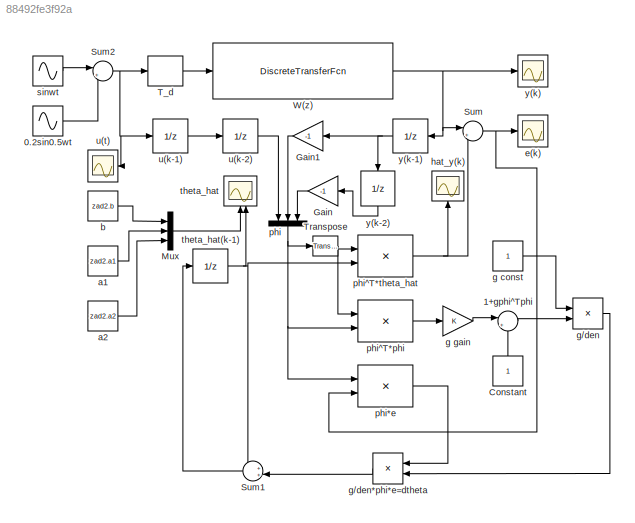
MODEL slx_88492fe3f92a
KIND model
CONFIG AbsTol = auto
CONFIG EnableMultiTasking = off
CONFIG FixedStep = 1e-3
CONFIG MaxStep = auto
CONFIG MinStep = auto
CONFIG RelTol = 1e-3
CONFIG SampleTimeConstraint = Unconstrained
CONFIG SolverName = FixedStepAuto
CONFIG StartTime = 0.0
CONFIG StopTime = 60.0
BLOCK [Sin] 0.2sin0.5wt
  Amplitude = 0.2
  Frequency = 0.5*zad2.w
BLOCK [Sum] 1+gphi^Tphi
  Inputs = |++
  NameLocation = top
BLOCK [Constant] Constant
  NameLocation = right
BLOCK [Gain] Gain
  Gain = -1
  NameLocation = top
BLOCK [Gain] Gain1
  Gain = -1
  NameLocation = top
BLOCK [Mux] Mux
  DisplayOption = bar
  Inputs = 3
BLOCK [Sum] Sum
  Inputs = |+-
BLOCK [Sum] Sum1
  Inputs = ++|
  NameLocation = top
BLOCK [Sum] Sum2
  Inputs = |++
BLOCK [ZeroOrderHold] T_d
  SampleTime = 0.1
BLOCK [Reference] Transpose  REF=matrix_library/Transpose
  LibrarySourceBlock = simulink/Matrix\nOperations/Transpose
  SourceBlock = matrix_library/Transpose
  SourceType = Transpose
BLOCK [DiscreteTransferFcn] W(z)
  Denominator = [1 zad2.a1 zad2.a2]
  InputPortMap = u0
  Numerator = [0 0 zad2.b]
BLOCK [Constant] a1
  Value = zad2.a1
BLOCK [Constant] a2
  Value = zad2.a2
BLOCK [Constant] b
  Value = zad2.b
BLOCK [Scope] e(k)
  Floating = off
  NumInputPorts = 1
  ScopeSpecificationString = Simulink.scopes.TimeScopeBlockCfg('CurrentConfiguration', extmgr.ConfigurationSet(extmgr.Configuration('Core','General UI',true,'FigureColor',[1 1 1]),extmgr.Configuration('Core','Source UI',true),extmgr.Configuration('Sources','WiredSimulink',true,'DataLoggingVariableName','ScopeData2'),extmgr.Configuration('Visuals','Time Domain',true,'SerializedDisplays',{struct('MinYLimReal','-4.4749','MaxYLim...<+2385ch>
BLOCK [Constant] g const
BLOCK [Gain] g gain
BLOCK [Product] g//den
  Inputs = */
BLOCK [Product] g//den*phi*e=dtheta
  NameLocation = top
BLOCK [Scope] hat_y(k)
  Floating = off
  NameLocation = top
  NumInputPorts = 1
  ScopeSpecificationString = Simulink.scopes.TimeScopeBlockCfg('CurrentConfiguration', extmgr.ConfigurationSet(extmgr.Configuration('Core','General UI',true,'FigureColor',[1 1 1]),extmgr.Configuration('Core','Source UI',true),extmgr.Configuration('Sources','WiredSimulink',true,'DataLoggingVariableName','ScopeData1'),extmgr.Configuration('Visuals','Time Domain',true,'SerializedDisplays',{struct('MinYLimReal','-1.90405','MaxYLi...<+2411ch>
BLOCK [Mux] phi
  DisplayOption = bar
  Inputs = 3
  NameLocation = left
BLOCK [Product] phi*e
  Multiplication = Matrix(*)
BLOCK [Product] phi^T*phi
  Multiplication = Matrix(*)
BLOCK [Product] phi^T*theta_hat
  Multiplication = Matrix(*)
BLOCK [Sin] sinwt
  Frequency = zad2.w
BLOCK [Scope] theta_hat
  Floating = off
  NameLocation = left
  NumInputPorts = 2
  ScopeSpecificationString = Simulink.scopes.TimeScopeBlockCfg('CurrentConfiguration', extmgr.ConfigurationSet(extmgr.Configuration('Core','General UI',true,'FigureColor',[1 1 1]),extmgr.Configuration('Core','Source UI',true),extmgr.Configuration('Sources','WiredSimulink',true,'DataLoggingVariableName','ScopeData3'),extmgr.Configuration('Visuals','Time Domain',true,'SerializedDisplays',{struct('MinYLimReal','-2.51125','MaxYLi...<+2394ch>
BLOCK [UnitDelay] theta_hat(k-1)
  HasFrameUpgradeWarning = on
  InitialCondition = [0;0;0];
  SampleTime = 0.1
BLOCK [UnitDelay] u(k-1)
  HasFrameUpgradeWarning = on
  SampleTime = 0.1
BLOCK [UnitDelay] u(k-2)
  HasFrameUpgradeWarning = on
  SampleTime = 0.1
BLOCK [Scope] u(t)
  Floating = off
  NameLocation = top
  NumInputPorts = 1
  ScopeSpecificationString = Simulink.scopes.TimeScopeBlockCfg('CurrentConfiguration', extmgr.ConfigurationSet(extmgr.Configuration('Core','General UI',true,'FigureColor',[1 1 1]),extmgr.Configuration('Core','Source UI',true),extmgr.Configuration('Sources','WiredSimulink',true,'DataLoggingVariableName','ScopeData1'),extmgr.Configuration('Visuals','Time Domain',true,'SerializedDisplays',{struct('MinYLimReal','-1.39383','MaxYLi...<+2352ch>
BLOCK [Scope] y(k)
  Floating = off
  NumInputPorts = 1
  ScopeSpecificationString = Simulink.scopes.TimeScopeBlockCfg('CurrentConfiguration', extmgr.ConfigurationSet(extmgr.Configuration('Core','General UI',true,'FigureColor',[1 1 1]),extmgr.Configuration('Core','Source UI',true),extmgr.Configuration('Sources','WiredSimulink',true),extmgr.Configuration('Visuals','Time Domain',true,'SerializedDisplays',{struct('MinYLimReal','-9.9155','MaxYLimReal','2.50826','YLabelReal','y(k)','Mi...<+2325ch>
BLOCK [UnitDelay] y(k-1)
  HasFrameUpgradeWarning = on
  NameLocation = top
  SampleTime = 0.1
BLOCK [UnitDelay] y(k-2)
  HasFrameUpgradeWarning = on
  NameLocation = right
  SampleTime = 0.1
LINE 0.2sin0.5wt:1 -> Sum2:2
LINE 1+gphi^Tphi:1 -> g//den:2
LINE Constant:1 -> 1+gphi^Tphi:2
LINE Gain1:1 -> phi:2
LINE Gain:1 -> phi:3
LINE Mux:1 -> theta_hat:1
LINE Sum1:1 -> theta_hat(k-1):1
NET Sum2:1 -> T_d:1, u(k-1):1, u(t):1
NET Sum:1 -> e(k):1, phi*e:2
LINE T_d:1 -> W(z):1
NET Transpose:1 -> phi^T*phi:1, phi^T*theta_hat:1
NET W(z):1 -> Sum:1, y(k):1, y(k-1):1
LINE a1:1 -> Mux:2
LINE a2:1 -> Mux:3
LINE b:1 -> Mux:1
LINE g const:1 -> g//den:1
LINE g gain:1 -> 1+gphi^Tphi:1
LINE g//den*phi*e=dtheta:1 -> Sum1:2
LINE g//den:1 -> g//den*phi*e=dtheta:2
LINE phi*e:1 -> g//den*phi*e=dtheta:1
NET phi:1 -> Transpose:1, phi*e:1, phi^T*phi:2
LINE phi^T*phi:1 -> g gain:1
NET phi^T*theta_hat:1 -> Sum:2, hat_y(k):1
LINE sinwt:1 -> Sum2:1
NET theta_hat(k-1):1 -> Sum1:1, phi^T*theta_hat:2, theta_hat:2
LINE u(k-1):1 -> u(k-2):1
LINE u(k-2):1 -> phi:1
NET y(k-1):1 -> Gain1:1, y(k-2):1
LINE y(k-2):1 -> Gain:1
note: NET lines group one-source signal fan-out (src -> all destinations, sorted); 1:1 wires keep LINE
